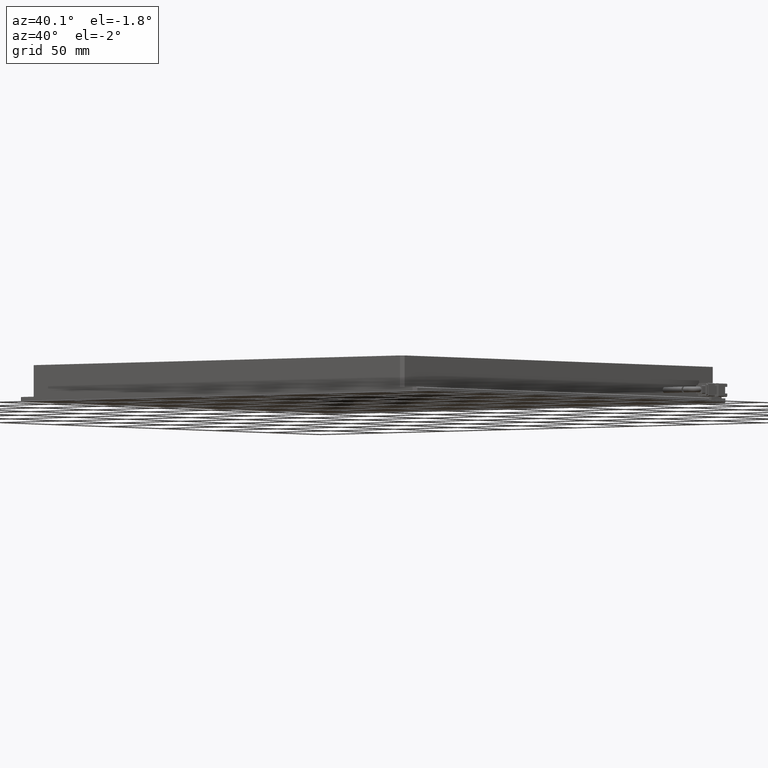
[diagram: clean part render]
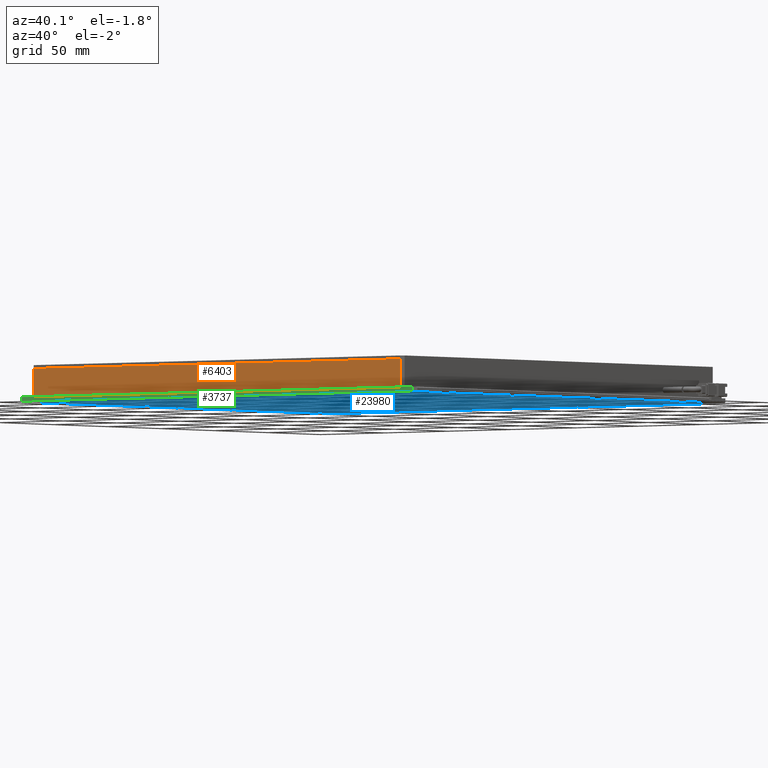
[diagram: same view with three faces highlighted in distinct colors, each labeled with its STEP entity id]
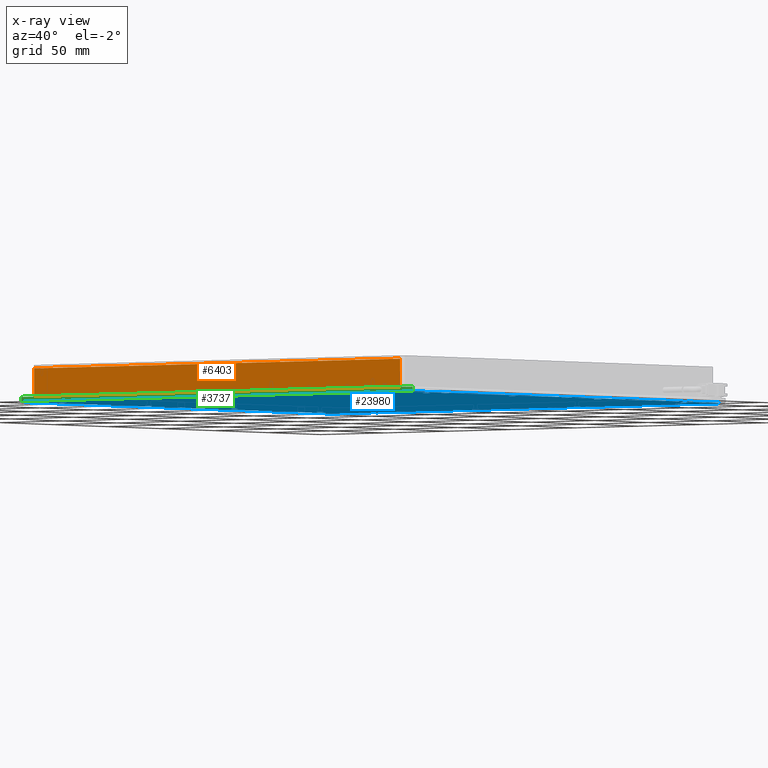
[diagram: x-ray of the same camera — body ghosted, the three highlighted faces saturated]
A machine part, auxiliary view with three faces highlighted in distinct colors.
The next image is the same camera in x-ray (body ghosted, the three faces saturated) — at least one of them is partly hidden behind the body in this view.
Their STEP definitions:

[orange] entity #6403 — the highlighted planar face has unit normal (0, 1, -0).
#2193 = VECTOR ( 'NONE', #2307, 1000.000000000000000 ) ;
#2307 = DIRECTION ( 'NONE',  ( 1.000000000000000000, 0.0000000000000000000, -0.0000000000000000000 ) ) ;
#2627 = DIRECTION ( 'NONE',  ( -1.000000000000000000, 9.505334114941411000E-017, 0.0000000000000000000 ) ) ;
#3088 = DIRECTION ( 'NONE',  ( 9.505334114941411000E-017, 1.000000000000000000, -0.0000000000000000000 ) ) ;
#3488 = CARTESIAN_POINT ( 'NONE',  ( -113.0806771263418400, -132.7301954307733600, 8.499999999971805700 ) ) ;
#4339 = DIRECTION ( 'NONE',  ( -1.000000000000000000, 9.505334114941411000E-017, 0.0000000000000000000 ) ) ;
#5314 = LINE ( 'NONE', #25740, #10973 ) ;
#5516 = PLANE ( 'NONE',  #9503 ) ;
#6056 = ORIENTED_EDGE ( 'NONE', *, *, #18946, .T. ) ;
#6403 = ADVANCED_FACE ( 'NONE', ( #20739 ), #5516, .F. ) ;
#8598 = CARTESIAN_POINT ( 'NONE',  ( -111.0806771263418400, -132.7301954307733600, -8.500000000028194300 ) ) ;
#9488 = VECTOR ( 'NONE', #4339, 1000.000000000000000 ) ;
#9503 = AXIS2_PLACEMENT_3D ( 'NONE', #3488, #3088, #2627 ) ;
#10749 = DIRECTION ( 'NONE',  ( 0.0000000000000000000, 0.0000000000000000000, 1.000000000000000000 ) ) ;
#10973 = VECTOR ( 'NONE', #10749, 1000.000000000000000 ) ;
#12671 = EDGE_CURVE ( 'NONE', #14264, #14324, #25902, .T. ) ;
#14264 = VERTEX_POINT ( 'NONE', #16532 ) ;
#14324 = VERTEX_POINT ( 'NONE', #8598 ) ;
#15721 = CARTESIAN_POINT ( 'NONE',  ( -111.0806771263418400, -132.7301954307733600, 8.499999999971805700 ) ) ;
#16532 = CARTESIAN_POINT ( 'NONE',  ( 176.9193228736579600, -132.7301954307734200, -8.500000000028194300 ) ) ;
#17136 = LINE ( 'NONE', #15721, #22109 ) ;
#17187 = CARTESIAN_POINT ( 'NONE',  ( -113.0806771263418400, -132.7301954307733600, -8.500000000028194300 ) ) ;
#17313 = VERTEX_POINT ( 'NONE', #22462 ) ;
#17325 = CARTESIAN_POINT ( 'NONE',  ( -113.0806771263418400, -132.7301954307733600, 8.499999999971805700 ) ) ;
#17682 = VERTEX_POINT ( 'NONE', #24190 ) ;
#18946 = EDGE_CURVE ( 'NONE', #14264, #17682, #5314, .T. ) ;
#19063 = ORIENTED_EDGE ( 'NONE', *, *, #12671, .F. ) ;
#19524 = EDGE_CURVE ( 'NONE', #17313, #17682, #24322, .T. ) ;
#19708 = EDGE_LOOP ( 'NONE', ( #21804, #24916, #19063, #6056 ) ) ;
#20739 = FACE_OUTER_BOUND ( 'NONE', #19708, .T. ) ;
#21468 = EDGE_CURVE ( 'NONE', #17313, #14324, #17136, .T. ) ;
#21804 = ORIENTED_EDGE ( 'NONE', *, *, #19524, .F. ) ;
#22025 = DIRECTION ( 'NONE',  ( -0.0000000000000000000, 0.0000000000000000000, -1.000000000000000000 ) ) ;
#22109 = VECTOR ( 'NONE', #22025, 1000.000000000000000 ) ;
#22462 = CARTESIAN_POINT ( 'NONE',  ( -111.0806771263418400, -132.7301954307733600, 8.499999999971805700 ) ) ;
#24190 = CARTESIAN_POINT ( 'NONE',  ( 176.9193228736579000, -132.7301954307733900, 8.499999999971805700 ) ) ;
#24322 = LINE ( 'NONE', #17325, #2193 ) ;
#24916 = ORIENTED_EDGE ( 'NONE', *, *, #21468, .T. ) ;
#25740 = CARTESIAN_POINT ( 'NONE',  ( 176.9193228736580700, -132.7301954307733900, 8.499999999971805700 ) ) ;
#25902 = LINE ( 'NONE', #17187, #9488 ) ;

[blue] entity #23980 — the highlighted planar face has unit normal (0, 0, -1).
#104 = AXIS2_PLACEMENT_3D ( 'NONE', #3373, #18386, #5520 ) ;
#109 = AXIS2_PLACEMENT_3D ( 'NONE', #8415, #23417, #10579 ) ;
#126 = ORIENTED_EDGE ( 'NONE', *, *, #8638, .T. ) ;
#195 = CARTESIAN_POINT ( 'NONE',  ( -110.0806771263419100, 133.2698045692266100, -11.50000000014188300 ) ) ;
#214 = CARTESIAN_POINT ( 'NONE',  ( 181.6693228736581000, -98.73019543077344900, -11.50000000002819600 ) ) ;
#222 = DIRECTION ( 'NONE',  ( -0.0000000000000000000, -0.0000000000000000000, 1.000000000000000000 ) ) ;
#288 = CIRCLE ( 'NONE', #15339, 2.199999999810631200 ) ;
#311 = ORIENTED_EDGE ( 'NONE', *, *, #19484, .T. ) ;
#351 = DIRECTION ( 'NONE',  ( 1.000000000000000000, 0.0000000000000000000, 0.0000000000000000000 ) ) ;
#376 = CARTESIAN_POINT ( 'NONE',  ( 183.9193228736580700, 13.26980456922655100, -11.50000000002819600 ) ) ;
#439 = CARTESIAN_POINT ( 'NONE',  ( -110.0806771263419100, -26.73019543077340300, -11.50000000014188300 ) ) ;
#509 = CARTESIAN_POINT ( 'NONE',  ( -115.8306771263419100, 13.26980456922663400, -11.50000000002819600 ) ) ;
#516 = ORIENTED_EDGE ( 'NONE', *, *, #15140, .T. ) ;
#621 = DIRECTION ( 'NONE',  ( -1.000000000000000000, 0.0000000000000000000, -0.0000000000000000000 ) ) ;
#623 = EDGE_CURVE ( 'NONE', #18581, #18964, #20128, .T. ) ;
#652 = ORIENTED_EDGE ( 'NONE', *, *, #19132, .T. ) ;
#690 = CIRCLE ( 'NONE', #18587, 2.200000000005697400 ) ;
#748 = PLANE ( 'NONE',  #5030 ) ;
#786 = VERTEX_POINT ( 'NONE', #15441 ) ;
#824 = CARTESIAN_POINT ( 'NONE',  ( -110.0806771263419100, 133.2698045692266100, -11.50000000014188300 ) ) ;
#842 = DIRECTION ( 'NONE',  ( 0.0000000000000000000, 0.0000000000000000000, -1.000000000000000000 ) ) ;
#843 = CIRCLE ( 'NONE', #23921, 2.249999999999974200 ) ;
#902 = VERTEX_POINT ( 'NONE', #18473 ) ;
#965 = DIRECTION ( 'NONE',  ( -0.7071067811865130400, -0.7071067811865819900, 0.0000000000000000000 ) ) ;
#999 = EDGE_CURVE ( 'NONE', #23861, #22208, #20082, .T. ) ;
#1042 = CARTESIAN_POINT ( 'NONE',  ( -122.5806771263419400, 157.0626977880401100, -11.50000000002820000 ) ) ;
#1045 = DIRECTION ( 'NONE',  ( -0.0000000000000000000, -0.0000000000000000000, 1.000000000000000000 ) ) ;
#1109 = VERTEX_POINT ( 'NONE', #24661 ) ;
#1119 = EDGE_CURVE ( 'NONE', #18701, #17661, #25244, .T. ) ;
#1125 = DIRECTION ( 'NONE',  ( -0.0000000000000000000, -0.0000000000000000000, 1.000000000000000000 ) ) ;
#1228 = CIRCLE ( 'NONE', #17219, 2.249999999999988000 ) ;
#1231 = VERTEX_POINT ( 'NONE', #25310 ) ;
#1236 = ORIENTED_EDGE ( 'NONE', *, *, #22980, .T. ) ;
#1239 = CARTESIAN_POINT ( 'NONE',  ( -120.3306771263419000, 125.2698045692265900, -11.50000000002819600 ) ) ;
#1270 = CARTESIAN_POINT ( 'NONE',  ( -110.0806771263419100, -26.73019543077340300, -11.50000000014188300 ) ) ;
#1297 = DIRECTION ( 'NONE',  ( 1.000000000000000000, 0.0000000000000000000, 0.0000000000000000000 ) ) ;
#1325 = AXIS2_PLACEMENT_3D ( 'NONE', #18404, #5534, #20531 ) ;
#1442 = CARTESIAN_POINT ( 'NONE',  ( 178.1193228734687200, -26.73019543077340300, -11.49999999997135300 ) ) ;
#1458 = DIRECTION ( 'NONE',  ( -1.000000000000000000, 0.0000000000000000000, 0.0000000000000000000 ) ) ;
#1489 = DIRECTION ( 'NONE',  ( -0.0000000000000000000, -0.0000000000000000000, 1.000000000000000000 ) ) ;
#1511 = CARTESIAN_POINT ( 'NONE',  ( -122.5806771263419300, 159.2698045692266400, -11.50000000002819600 ) ) ;
#1517 = CARTESIAN_POINT ( 'NONE',  ( 175.9193228736580700, -26.73019543077340300, -11.49999999997135300 ) ) ;
#1598 = CIRCLE ( 'NONE', #7777, 2.199999999917046100 ) ;
#1602 = ORIENTED_EDGE ( 'NONE', *, *, #1119, .T. ) ;
#1824 = CARTESIAN_POINT ( 'NONE',  ( 181.6693228736581000, 125.2698045692265400, -11.50000000002819600 ) ) ;
#1958 = ORIENTED_EDGE ( 'NONE', *, *, #623, .T. ) ;
#1964 = ORIENTED_EDGE ( 'NONE', *, *, #13169, .T. ) ;
#1965 = AXIS2_PLACEMENT_3D ( 'NONE', #4553, #3075, #3050 ) ;
#1988 = CARTESIAN_POINT ( 'NONE',  ( -110.0806771263419100, 53.26980456922658600, -11.50000000014188300 ) ) ;
#2167 = ORIENTED_EDGE ( 'NONE', *, *, #22068, .T. ) ;
#2182 = EDGE_CURVE ( 'NONE', #1109, #10470, #14063, .T. ) ;
#2321 = DIRECTION ( 'NONE',  ( -1.000000000000000000, 0.0000000000000000000, 0.0000000000000000000 ) ) ;
#2338 = FACE_BOUND ( 'NONE', #12553, .T. ) ;
#2458 = AXIS2_PLACEMENT_3D ( 'NONE', #13839, #1045, #16034 ) ;
#2460 = VERTEX_POINT ( 'NONE', #7635 ) ;
#2499 = DIRECTION ( 'NONE',  ( 1.000000000000000000, 0.0000000000000000000, 0.0000000000000000000 ) ) ;
#2570 = DIRECTION ( 'NONE',  ( -1.000000000000000000, 0.0000000000000000000, 0.0000000000000000000 ) ) ;
#2576 = ORIENTED_EDGE ( 'NONE', *, *, #21620, .T. ) ;
#2587 = AXIS2_PLACEMENT_3D ( 'NONE', #13936, #1125, #16121 ) ;
#2677 = CIRCLE ( 'NONE', #6305, 2.199999999917046100 ) ;
#2703 = VERTEX_POINT ( 'NONE', #17598 ) ;
#2766 = VERTEX_POINT ( 'NONE', #9440 ) ;
#2813 = CARTESIAN_POINT ( 'NONE',  ( -84.88067712644075900, 156.2698045692266400, -11.50000000002819600 ) ) ;
#2818 = DIRECTION ( 'NONE',  ( -0.0000000000000000000, -0.0000000000000000000, 1.000000000000000000 ) ) ;
#2824 = CARTESIAN_POINT ( 'NONE',  ( -118.0806771263419100, 125.2698045692265900, -11.50000000002819600 ) ) ;
#2826 = VERTEX_POINT ( 'NONE', #4204 ) ;
#2902 = CARTESIAN_POINT ( 'NONE',  ( -7.080677126341916100, 156.2698045692266400, -11.49999999991450900 ) ) ;
#2950 = DIRECTION ( 'NONE',  ( -1.000000000000000000, 0.0000000000000000000, 0.0000000000000000000 ) ) ;
#3001 = AXIS2_PLACEMENT_3D ( 'NONE', #1988, #17014, #4150 ) ;
#3027 = DIRECTION ( 'NONE',  ( -0.0000000000000000000, -0.0000000000000000000, 1.000000000000000000 ) ) ;
#3028 = FACE_BOUND ( 'NONE', #15263, .T. ) ;
#3034 = CARTESIAN_POINT ( 'NONE',  ( 186.1693228736580700, 13.26980456922655100, -11.50000000002819600 ) ) ;
#3050 = DIRECTION ( 'NONE',  ( -1.000000000000000000, 0.0000000000000000000, 0.0000000000000000000 ) ) ;
#3075 = DIRECTION ( 'NONE',  ( -0.0000000000000000000, -0.0000000000000000000, 1.000000000000000000 ) ) ;
#3103 = DIRECTION ( 'NONE',  ( 0.0000000000000000000, 1.000000000000000000, 0.0000000000000000000 ) ) ;
#3121 = CARTESIAN_POINT ( 'NONE',  ( 152.9193228736580500, 156.2698045692266400, -11.50000000002819600 ) ) ;
#3166 = CIRCLE ( 'NONE', #27599, 2.249999999999974200 ) ;
#3182 = AXIS2_PLACEMENT_3D ( 'NONE', #26915, #14116, #1297 ) ;
#3360 = DIRECTION ( 'NONE',  ( -0.0000000000000000000, -1.000000000000000000, -0.0000000000000000000 ) ) ;
#3373 = CARTESIAN_POINT ( 'NONE',  ( -87.08067712634191100, 156.2698045692266400, -11.50000000002819600 ) ) ;
#3384 = DIRECTION ( 'NONE',  ( -1.000000000000000000, 0.0000000000000000000, 0.0000000000000000000 ) ) ;
#3436 = ORIENTED_EDGE ( 'NONE', *, *, #10246, .T. ) ;
#3456 = ORIENTED_EDGE ( 'NONE', *, *, #14642, .T. ) ;
#3463 = DIRECTION ( 'NONE',  ( -0.0000000000000000000, -0.0000000000000000000, 1.000000000000000000 ) ) ;
#3464 = AXIS2_PLACEMENT_3D ( 'NONE', #1270, #16261, #3384 ) ;
#3492 = DIRECTION ( 'NONE',  ( -0.0000000000000000000, -0.0000000000000000000, 1.000000000000000000 ) ) ;
#3578 = ORIENTED_EDGE ( 'NONE', *, *, #26764, .T. ) ;
#3621 = CIRCLE ( 'NONE', #104, 2.199999999901142400 ) ;
#3635 = ORIENTED_EDGE ( 'NONE', *, *, #23437, .T. ) ;
#3653 = ORIENTED_EDGE ( 'NONE', *, *, #4949, .T. ) ;
#3701 = FACE_BOUND ( 'NONE', #18339, .T. ) ;
#3760 = CARTESIAN_POINT ( 'NONE',  ( 173.7193228738474600, 53.26980456922658600, -11.49999999997135300 ) ) ;
#3935 = ORIENTED_EDGE ( 'NONE', *, *, #23698, .T. ) ;
#3959 = ORIENTED_EDGE ( 'NONE', *, *, #5584, .T. ) ;
#3997 = DIRECTION ( 'NONE',  ( -0.0000000000000000000, -0.0000000000000000000, 1.000000000000000000 ) ) ;
#4150 = DIRECTION ( 'NONE',  ( -1.000000000000000000, 0.0000000000000000000, 0.0000000000000000000 ) ) ;
#4161 = ORIENTED_EDGE ( 'NONE', *, *, #26240, .T. ) ;
#4204 = CARTESIAN_POINT ( 'NONE',  ( -112.2806771262676100, 133.2698045692266100, -11.50000000014188300 ) ) ;
#4370 = FACE_BOUND ( 'NONE', #19651, .T. ) ;
#4412 = DIRECTION ( 'NONE',  ( -0.0000000000000000000, -0.0000000000000000000, 1.000000000000000000 ) ) ;
#4502 = DIRECTION ( 'NONE',  ( -0.0000000000000000000, -0.0000000000000000000, 1.000000000000000000 ) ) ;
#4551 = VERTEX_POINT ( 'NONE', #8855 ) ;
#4553 = CARTESIAN_POINT ( 'NONE',  ( -110.0806771263419100, -106.7301954307733900, -11.50000000014188300 ) ) ;
#4649 = ORIENTED_EDGE ( 'NONE', *, *, #14593, .T. ) ;
#4716 = CARTESIAN_POINT ( 'NONE',  ( 188.4193228736581000, 157.0626977880402800, -11.50000000002819100 ) ) ;
#4870 = VERTEX_POINT ( 'NONE', #5995 ) ;
#4882 = CIRCLE ( 'NONE', #21459, 2.199999999810631200 ) ;
#4949 = EDGE_CURVE ( 'NONE', #902, #13515, #13324, .T. ) ;
#4978 = ORIENTED_EDGE ( 'NONE', *, *, #27356, .T. ) ;
#4984 = LINE ( 'NONE', #7125, #15734 ) ;
#4992 = DIRECTION ( 'NONE',  ( 1.000000000000000000, 0.0000000000000000000, 0.0000000000000000000 ) ) ;
#5030 = AXIS2_PLACEMENT_3D ( 'NONE', #13648, #842, #15821 ) ;
#5046 = FACE_BOUND ( 'NONE', #20058, .T. ) ;
#5060 = DIRECTION ( 'NONE',  ( -1.000000000000000000, 0.0000000000000000000, 0.0000000000000000000 ) ) ;
#5065 = DIRECTION ( 'NONE',  ( -0.0000000000000000000, -0.0000000000000000000, 1.000000000000000000 ) ) ;
#5189 = CIRCLE ( 'NONE', #3182, 2.249999999999974200 ) ;
#5202 = AXIS2_PLACEMENT_3D ( 'NONE', #22645, #22547, #22609 ) ;
#5242 = CIRCLE ( 'NONE', #22264, 2.249999999999988000 ) ;
#5298 = DIRECTION ( 'NONE',  ( -1.000000000000000000, 0.0000000000000000000, 0.0000000000000000000 ) ) ;
#5301 = CARTESIAN_POINT ( 'NONE',  ( 173.7193228738474600, -26.73019543077340300, -11.49999999997135300 ) ) ;
#5327 = DIRECTION ( 'NONE',  ( 1.000000000000000000, -0.0000000000000000000, 0.0000000000000000000 ) ) ;
#5346 = CARTESIAN_POINT ( 'NONE',  ( 175.9193228736580700, 53.26980456922658600, -11.49999999997135300 ) ) ;
#5486 = ORIENTED_EDGE ( 'NONE', *, *, #17856, .T. ) ;
#5520 = DIRECTION ( 'NONE',  ( -1.000000000000000000, 0.0000000000000000000, 0.0000000000000000000 ) ) ;
#5534 = DIRECTION ( 'NONE',  ( -0.0000000000000000000, -0.0000000000000000000, 1.000000000000000000 ) ) ;
#5539 = ORIENTED_EDGE ( 'NONE', *, *, #26575, .T. ) ;
#5571 = CARTESIAN_POINT ( 'NONE',  ( -7.080677126341916100, -129.7301954307733600, -11.49999999991450900 ) ) ;
#5584 = EDGE_CURVE ( 'NONE', #21562, #20268, #10356, .T. ) ;
#5667 = CARTESIAN_POINT ( 'NONE',  ( -89.28067712624304900, 156.2698045692266400, -11.50000000002819600 ) ) ;
#5715 = FACE_BOUND ( 'NONE', #22619, .T. ) ;
#5747 = VERTEX_POINT ( 'NONE', #13669 ) ;
#5942 = ORIENTED_EDGE ( 'NONE', *, *, #999, .T. ) ;
#5965 = LINE ( 'NONE', #22279, #27434 ) ;
#5995 = CARTESIAN_POINT ( 'NONE',  ( 155.1193228736637500, -129.7301954307733600, -11.50000000002819600 ) ) ;
#6154 = EDGE_CURVE ( 'NONE', #12321, #7148, #11979, .T. ) ;
#6176 = CARTESIAN_POINT ( 'NONE',  ( -87.08067712634191100, 156.2698045692266400, -11.50000000002819600 ) ) ;
#6240 = VECTOR ( 'NONE', #25619, 1000.000000000000100 ) ;
#6305 = AXIS2_PLACEMENT_3D ( 'NONE', #5571, #20567, #7736 ) ;
#6430 = ORIENTED_EDGE ( 'NONE', *, *, #7002, .T. ) ;
#6746 = AXIS2_PLACEMENT_3D ( 'NONE', #3121, #18146, #5298 ) ;
#6752 = DIRECTION ( 'NONE',  ( 1.000000000000000000, 0.0000000000000000000, 0.0000000000000000000 ) ) ;
#6847 = DIRECTION ( 'NONE',  ( -0.0000000000000000000, -0.0000000000000000000, 1.000000000000000000 ) ) ;
#6920 = VERTEX_POINT ( 'NONE', #10727 ) ;
#6962 = VECTOR ( 'NONE', #3103, 1000.000000000000000 ) ;
#7002 = EDGE_CURVE ( 'NONE', #17615, #20853, #5242, .T. ) ;
#7014 = VECTOR ( 'NONE', #621, 1000.000000000000000 ) ;
#7125 = CARTESIAN_POINT ( 'NONE',  ( -122.5806771263419400, 157.0626977880401100, -11.50000000002819600 ) ) ;
#7148 = VERTEX_POINT ( 'NONE', #1442 ) ;
#7247 = AXIS2_PLACEMENT_3D ( 'NONE', #14330, #1489, #16511 ) ;
#7493 = DIRECTION ( 'NONE',  ( -1.000000000000000000, 0.0000000000000000000, 0.0000000000000000000 ) ) ;
#7599 = VERTEX_POINT ( 'NONE', #3760 ) ;
#7635 = CARTESIAN_POINT ( 'NONE',  ( 173.7193228738474600, -106.7301954307733900, -11.49999999997135300 ) ) ;
#7732 = CIRCLE ( 'NONE', #2458, 2.199999999989821200 ) ;
#7736 = DIRECTION ( 'NONE',  ( -1.000000000000000000, 0.0000000000000000000, 0.0000000000000000000 ) ) ;
#7760 = EDGE_CURVE ( 'NONE', #23531, #24214, #16894, .T. ) ;
#7777 = AXIS2_PLACEMENT_3D ( 'NONE', #2902, #17920, #5060 ) ;
#7847 = DIRECTION ( 'NONE',  ( -0.0000000000000000000, -0.0000000000000000000, 1.000000000000000000 ) ) ;
#8054 = FACE_BOUND ( 'NONE', #13248, .T. ) ;
#8082 = CIRCLE ( 'NONE', #20736, 2.249999999999988000 ) ;
#8114 = CARTESIAN_POINT ( 'NONE',  ( 175.9193228736580700, 53.26980456922658600, -11.49999999997135300 ) ) ;
#8309 = DIRECTION ( 'NONE',  ( -1.000000000000000000, 0.0000000000000000000, 0.0000000000000000000 ) ) ;
#8359 = AXIS2_PLACEMENT_3D ( 'NONE', #9575, #24577, #11750 ) ;
#8415 = CARTESIAN_POINT ( 'NONE',  ( -118.0806771263419100, 125.2698045692265900, -11.50000000002819600 ) ) ;
#8470 = CARTESIAN_POINT ( 'NONE',  ( 186.7122160924718600, 158.7698045692266400, -11.50000000002819600 ) ) ;
#8638 = EDGE_CURVE ( 'NONE', #20853, #17615, #8082, .T. ) ;
#8688 = CARTESIAN_POINT ( 'NONE',  ( 155.1193228736637500, 156.2698045692266400, -11.50000000002819600 ) ) ;
#8696 = FACE_BOUND ( 'NONE', #21034, .T. ) ;
#8827 = CIRCLE ( 'NONE', #26127, 2.199999999925692100 ) ;
#8855 = CARTESIAN_POINT ( 'NONE',  ( 75.11932287364791700, -129.7301954307733600, -11.50000000002819600 ) ) ;
#9057 = VERTEX_POINT ( 'NONE', #18502 ) ;
#9240 = VERTEX_POINT ( 'NONE', #25565 ) ;
#9298 = DIRECTION ( 'NONE',  ( -0.0000000000000000000, -0.0000000000000000000, 1.000000000000000000 ) ) ;
#9315 = AXIS2_PLACEMENT_3D ( 'NONE', #2824, #17840, #4992 ) ;
#9338 = CARTESIAN_POINT ( 'NONE',  ( 188.4193228736581000, -130.5230886495869000, -11.50000000002819600 ) ) ;
#9374 = FACE_BOUND ( 'NONE', #16338, .T. ) ;
#9440 = CARTESIAN_POINT ( 'NONE',  ( 181.6693228736581000, 13.26980456922655100, -11.50000000002819600 ) ) ;
#9548 = CARTESIAN_POINT ( 'NONE',  ( 175.9193228736580700, -106.7301954307733900, -11.49999999997135300 ) ) ;
#9575 = CARTESIAN_POINT ( 'NONE',  ( -110.0806771263419100, -106.7301954307733900, -11.50000000014188300 ) ) ;
#9600 = CARTESIAN_POINT ( 'NONE',  ( -123.0806771263419100, 158.7698045692266400, -11.50000000002819600 ) ) ;
#9654 = CARTESIAN_POINT ( 'NONE',  ( 152.9193228736580500, 156.2698045692266400, -11.50000000002819600 ) ) ;
#9698 = CARTESIAN_POINT ( 'NONE',  ( -120.8735703451553900, -132.2301954307733900, -11.50000000002818900 ) ) ;
#9782 = DIRECTION ( 'NONE',  ( -0.0000000000000000000, -0.0000000000000000000, 1.000000000000000000 ) ) ;
#9786 = CARTESIAN_POINT ( 'NONE',  ( 72.91932287365810300, 156.2698045692266400, -11.50000000002819600 ) ) ;
#9875 = DIRECTION ( 'NONE',  ( -1.000000000000000000, 0.0000000000000000000, 0.0000000000000000000 ) ) ;
#10054 = FACE_BOUND ( 'NONE', #18680, .T. ) ;
#10246 = EDGE_CURVE ( 'NONE', #15889, #17369, #21054, .T. ) ;
#10256 = DIRECTION ( 'NONE',  ( -1.000000000000000000, 0.0000000000000000000, 0.0000000000000000000 ) ) ;
#10347 = DIRECTION ( 'NONE',  ( -0.0000000000000000000, -0.0000000000000000000, 1.000000000000000000 ) ) ;
#10356 = CIRCLE ( 'NONE', #13631, 2.199999999917046100 ) ;
#10470 = VERTEX_POINT ( 'NONE', #25184 ) ;
#10579 = DIRECTION ( 'NONE',  ( 1.000000000000000000, 0.0000000000000000000, 0.0000000000000000000 ) ) ;
#10655 = CARTESIAN_POINT ( 'NONE',  ( -4.880677126424870900, 156.2698045692266400, -11.49999999991450900 ) ) ;
#10727 = CARTESIAN_POINT ( 'NONE',  ( 75.11932287364791700, 156.2698045692266400, -11.50000000002819600 ) ) ;
#10877 = VERTEX_POINT ( 'NONE', #9698 ) ;
#11034 = CARTESIAN_POINT ( 'NONE',  ( 175.9193228736580700, -106.7301954307733900, -11.49999999997135300 ) ) ;
#11359 = EDGE_CURVE ( 'NONE', #9057, #2703, #22591, .T. ) ;
#11472 = ORIENTED_EDGE ( 'NONE', *, *, #27718, .T. ) ;
#11606 = VERTEX_POINT ( 'NONE', #18762 ) ;
#11687 = ORIENTED_EDGE ( 'NONE', *, *, #12112, .T. ) ;
#11699 = CARTESIAN_POINT ( 'NONE',  ( -107.8806771264162200, -26.73019543077340300, -11.50000000014188300 ) ) ;
#11723 = DIRECTION ( 'NONE',  ( -1.000000000000000000, 0.0000000000000000000, 0.0000000000000000000 ) ) ;
#11750 = DIRECTION ( 'NONE',  ( -1.000000000000000000, 0.0000000000000000000, 0.0000000000000000000 ) ) ;
#11898 = EDGE_CURVE ( 'NONE', #21513, #2766, #21862, .T. ) ;
#11908 = CIRCLE ( 'NONE', #20093, 2.199999999925692100 ) ;
#11954 = DIRECTION ( 'NONE',  ( -1.000000000000000000, 0.0000000000000000000, 0.0000000000000000000 ) ) ;
#11979 = CIRCLE ( 'NONE', #26374, 2.199999999810631200 ) ;
#11982 = CARTESIAN_POINT ( 'NONE',  ( -118.0806771263419100, -98.73019543077346300, -11.50000000002819600 ) ) ;
#12009 = ORIENTED_EDGE ( 'NONE', *, *, #15636, .T. ) ;
#12112 = EDGE_CURVE ( 'NONE', #14605, #9240, #16861, .T. ) ;
#12321 = VERTEX_POINT ( 'NONE', #5301 ) ;
#12416 = LINE ( 'NONE', #22234, #18152 ) ;
#12496 = VERTEX_POINT ( 'NONE', #22867 ) ;
#12553 = EDGE_LOOP ( 'NONE', ( #20238, #27409 ) ) ;
#12932 = AXIS2_PLACEMENT_3D ( 'NONE', #6176, #21160, #8309 ) ;
#13026 = CARTESIAN_POINT ( 'NONE',  ( 72.91932287365810300, -129.7301954307733600, -11.50000000002819600 ) ) ;
#13140 = DIRECTION ( 'NONE',  ( -0.0000000000000000000, -0.0000000000000000000, 1.000000000000000000 ) ) ;
#13169 = EDGE_CURVE ( 'NONE', #13614, #14563, #16184, .T. ) ;
#13199 = DIRECTION ( 'NONE',  ( -1.000000000000000000, 0.0000000000000000000, 0.0000000000000000000 ) ) ;
#13248 = EDGE_LOOP ( 'NONE', ( #126, #6430 ) ) ;
#13324 = LINE ( 'NONE', #1511, #6962 ) ;
#13365 = ORIENTED_EDGE ( 'NONE', *, *, #17760, .T. ) ;
#13447 = CIRCLE ( 'NONE', #15039, 2.199999999925692100 ) ;
#13450 = CARTESIAN_POINT ( 'NONE',  ( -9.280677126258963100, 156.2698045692266400, -11.49999999991450900 ) ) ;
#13515 = VERTEX_POINT ( 'NONE', #1042 ) ;
#13585 = ORIENTED_EDGE ( 'NONE', *, *, #14186, .T. ) ;
#13614 = VERTEX_POINT ( 'NONE', #5667 ) ;
#13631 = AXIS2_PLACEMENT_3D ( 'NONE', #17084, #17025, #16989 ) ;
#13648 = CARTESIAN_POINT ( 'NONE',  ( -123.0806771263419100, 159.2698045692266400, -11.50000000002819600 ) ) ;
#13669 = CARTESIAN_POINT ( 'NONE',  ( -107.8806771264162200, 133.2698045692266100, -11.50000000014188300 ) ) ;
#13692 = ORIENTED_EDGE ( 'NONE', *, *, #19340, .T. ) ;
#13754 = FACE_BOUND ( 'NONE', #19926, .T. ) ;
#13839 = CARTESIAN_POINT ( 'NONE',  ( 72.91932287365810300, 156.2698045692266400, -11.50000000002819600 ) ) ;
#13936 = CARTESIAN_POINT ( 'NONE',  ( 175.9193228736580700, -26.73019543077340300, -11.49999999997135300 ) ) ;
#14048 = ORIENTED_EDGE ( 'NONE', *, *, #24493, .T. ) ;
#14063 = CIRCLE ( 'NONE', #1965, 2.199999999925692100 ) ;
#14116 = DIRECTION ( 'NONE',  ( -0.0000000000000000000, -0.0000000000000000000, 1.000000000000000000 ) ) ;
#14186 = EDGE_CURVE ( 'NONE', #17851, #19246, #25441, .T. ) ;
#14308 = CIRCLE ( 'NONE', #6746, 2.200000000005697400 ) ;
#14330 = CARTESIAN_POINT ( 'NONE',  ( 175.9193228736580700, 133.2698045692266100, -11.49999999997135300 ) ) ;
#14363 = CARTESIAN_POINT ( 'NONE',  ( -4.880677126424870900, -129.7301954307733600, -11.49999999991450900 ) ) ;
#14373 = DIRECTION ( 'NONE',  ( -1.000000000000000000, 0.0000000000000000000, 0.0000000000000000000 ) ) ;
#14382 = ORIENTED_EDGE ( 'NONE', *, *, #14556, .T. ) ;
#14437 = FACE_BOUND ( 'NONE', #15682, .T. ) ;
#14556 = EDGE_CURVE ( 'NONE', #13515, #14605, #4984, .T. ) ;
#14563 = VERTEX_POINT ( 'NONE', #2813 ) ;
#14593 = EDGE_CURVE ( 'NONE', #17257, #12496, #5965, .T. ) ;
#14605 = VERTEX_POINT ( 'NONE', #18115 ) ;
#14642 = EDGE_CURVE ( 'NONE', #17650, #7599, #288, .T. ) ;
#14648 = CIRCLE ( 'NONE', #19724, 2.249999999999974200 ) ;
#14693 = LINE ( 'NONE', #18190, #19728 ) ;
#14962 = EDGE_LOOP ( 'NONE', ( #3436, #24568 ) ) ;
#15039 = AXIS2_PLACEMENT_3D ( 'NONE', #195, #15166, #2321 ) ;
#15104 = FACE_BOUND ( 'NONE', #18590, .T. ) ;
#15140 = EDGE_CURVE ( 'NONE', #6920, #11606, #15976, .T. ) ;
#15166 = DIRECTION ( 'NONE',  ( -0.0000000000000000000, -0.0000000000000000000, 1.000000000000000000 ) ) ;
#15197 = DIRECTION ( 'NONE',  ( -1.000000000000000000, 0.0000000000000000000, 0.0000000000000000000 ) ) ;
#15263 = EDGE_LOOP ( 'NONE', ( #24292, #15741 ) ) ;
#15322 = EDGE_CURVE ( 'NONE', #26889, #24257, #21592, .T. ) ;
#15335 = ORIENTED_EDGE ( 'NONE', *, *, #2182, .T. ) ;
#15339 = AXIS2_PLACEMENT_3D ( 'NONE', #5346, #20339, #7493 ) ;
#15352 = DIRECTION ( 'NONE',  ( -0.0000000000000000000, -0.0000000000000000000, 1.000000000000000000 ) ) ;
#15422 = DIRECTION ( 'NONE',  ( -0.0000000000000000000, -0.0000000000000000000, 1.000000000000000000 ) ) ;
#15441 = CARTESIAN_POINT ( 'NONE',  ( 178.1193228734687200, 133.2698045692266100, -11.49999999997135300 ) ) ;
#15504 = DIRECTION ( 'NONE',  ( -0.0000000000000000000, -0.0000000000000000000, 1.000000000000000000 ) ) ;
#15511 = VERTEX_POINT ( 'NONE', #4716 ) ;
#15589 = ORIENTED_EDGE ( 'NONE', *, *, #23002, .T. ) ;
#15622 = EDGE_LOOP ( 'NONE', ( #15589, #16943 ) ) ;
#15636 = EDGE_CURVE ( 'NONE', #18964, #18581, #14308, .T. ) ;
#15682 = EDGE_LOOP ( 'NONE', ( #15335, #15735 ) ) ;
#15687 = CARTESIAN_POINT ( 'NONE',  ( -110.0806771263419100, 53.26980456922658600, -11.50000000014188300 ) ) ;
#15735 = ORIENTED_EDGE ( 'NONE', *, *, #23067, .T. ) ;
#15734 = VECTOR ( 'NONE', #22079, 1000.000000000000000 ) ;
#15741 = ORIENTED_EDGE ( 'NONE', *, *, #23334, .T. ) ;
#15813 = DIRECTION ( 'NONE',  ( -0.0000000000000000000, -0.0000000000000000000, 1.000000000000000000 ) ) ;
#15821 = DIRECTION ( 'NONE',  ( -1.000000000000000000, 0.0000000000000000000, -0.0000000000000000000 ) ) ;
#15889 = VERTEX_POINT ( 'NONE', #21270 ) ;
#15901 = CARTESIAN_POINT ( 'NONE',  ( 183.9193228736580700, -98.73019543077344900, -11.50000000002819600 ) ) ;
#15905 = ORIENTED_EDGE ( 'NONE', *, *, #27776, .T. ) ;
#15920 = DIRECTION ( 'NONE',  ( -0.7071067811865510100, 0.7071067811865441300, 0.0000000000000000000 ) ) ;
#15976 = CIRCLE ( 'NONE', #17500, 2.199999999989821200 ) ;
#16034 = DIRECTION ( 'NONE',  ( -1.000000000000000000, 0.0000000000000000000, 0.0000000000000000000 ) ) ;
#16121 = DIRECTION ( 'NONE',  ( -1.000000000000000000, 0.0000000000000000000, 0.0000000000000000000 ) ) ;
#16178 = CARTESIAN_POINT ( 'NONE',  ( -9.280677126258963100, -129.7301954307733600, -11.49999999991450900 ) ) ;
#16184 = CIRCLE ( 'NONE', #12932, 2.199999999901142400 ) ;
#16219 = EDGE_CURVE ( 'NONE', #26591, #21855, #5189, .T. ) ;
#16261 = DIRECTION ( 'NONE',  ( -0.0000000000000000000, -0.0000000000000000000, 1.000000000000000000 ) ) ;
#16293 = EDGE_LOOP ( 'NONE', ( #16685, #13692 ) ) ;
#16320 = EDGE_LOOP ( 'NONE', ( #27640, #3456 ) ) ;
#16338 = EDGE_LOOP ( 'NONE', ( #25322, #24022 ) ) ;
#16343 = CARTESIAN_POINT ( 'NONE',  ( 72.91932287365810300, -129.7301954307733600, -11.50000000002819600 ) ) ;
#16370 = CARTESIAN_POINT ( 'NONE',  ( 152.9193228736580500, -129.7301954307733600, -11.50000000002819600 ) ) ;
#16485 = FACE_OUTER_BOUND ( 'NONE', #21266, .T. ) ;
#16511 = DIRECTION ( 'NONE',  ( -1.000000000000000000, 0.0000000000000000000, 0.0000000000000000000 ) ) ;
#16619 = CARTESIAN_POINT ( 'NONE',  ( 150.7193228736523700, 156.2698045692266400, -11.50000000002819600 ) ) ;
#16685 = ORIENTED_EDGE ( 'NONE', *, *, #18438, .T. ) ;
#16759 = CARTESIAN_POINT ( 'NONE',  ( -120.3306771263419000, 13.26980456922663400, -11.50000000002819600 ) ) ;
#16775 = AXIS2_PLACEMENT_3D ( 'NONE', #17271, #4412, #19430 ) ;
#16851 = CARTESIAN_POINT ( 'NONE',  ( 183.9193228736580700, 125.2698045692265400, -11.50000000002819600 ) ) ;
#16859 = CIRCLE ( 'NONE', #21812, 2.200000000005697400 ) ;
#16861 = LINE ( 'NONE', #9600, #21837 ) ;
#16894 = CIRCLE ( 'NONE', #16775, 2.249999999999988000 ) ;
#16943 = ORIENTED_EDGE ( 'NONE', *, *, #27126, .T. ) ;
#16989 = DIRECTION ( 'NONE',  ( -1.000000000000000000, 0.0000000000000000000, 0.0000000000000000000 ) ) ;
#17014 = DIRECTION ( 'NONE',  ( -0.0000000000000000000, -0.0000000000000000000, 1.000000000000000000 ) ) ;
#17025 = DIRECTION ( 'NONE',  ( -0.0000000000000000000, -0.0000000000000000000, 1.000000000000000000 ) ) ;
#17084 = CARTESIAN_POINT ( 'NONE',  ( -7.080677126341916100, -129.7301954307733600, -11.49999999991450900 ) ) ;
#17219 = AXIS2_PLACEMENT_3D ( 'NONE', #25967, #13140, #351 ) ;
#17257 = VERTEX_POINT ( 'NONE', #9338 ) ;
#17271 = CARTESIAN_POINT ( 'NONE',  ( -118.0806771263419100, 13.26980456922663400, -11.50000000002819600 ) ) ;
#17368 = CARTESIAN_POINT ( 'NONE',  ( -87.08067712634191100, -129.7301954307733600, -11.50000000002819600 ) ) ;
#17369 = VERTEX_POINT ( 'NONE', #1239 ) ;
#17373 = CARTESIAN_POINT ( 'NONE',  ( 186.1693228736580700, -98.73019543077344900, -11.50000000002819600 ) ) ;
#17452 = CARTESIAN_POINT ( 'NONE',  ( -7.080677126341916100, 156.2698045692266400, -11.49999999991450900 ) ) ;
#17500 = AXIS2_PLACEMENT_3D ( 'NONE', #9786, #24783, #11954 ) ;
#17598 = CARTESIAN_POINT ( 'NONE',  ( -107.8806771264162200, 53.26980456922658600, -11.50000000014188300 ) ) ;
#17615 = VERTEX_POINT ( 'NONE', #25980 ) ;
#17636 = AXIS2_PLACEMENT_3D ( 'NONE', #9548, #24555, #11723 ) ;
#17650 = VERTEX_POINT ( 'NONE', #24089 ) ;
#17661 = VERTEX_POINT ( 'NONE', #13450 ) ;
#17745 = CIRCLE ( 'NONE', #17636, 2.199999999810631200 ) ;
#17760 = EDGE_CURVE ( 'NONE', #10877, #902, #12416, .T. ) ;
#17834 = DIRECTION ( 'NONE',  ( -1.000000000000000000, 0.0000000000000000000, 0.0000000000000000000 ) ) ;
#17840 = DIRECTION ( 'NONE',  ( -0.0000000000000000000, -0.0000000000000000000, 1.000000000000000000 ) ) ;
#17851 = VERTEX_POINT ( 'NONE', #20487 ) ;
#17856 = EDGE_CURVE ( 'NONE', #20268, #21562, #2677, .T. ) ;
#17920 = DIRECTION ( 'NONE',  ( -0.0000000000000000000, -0.0000000000000000000, 1.000000000000000000 ) ) ;
#17926 = CARTESIAN_POINT ( 'NONE',  ( 152.9193228736580500, -129.7301954307733600, -11.50000000002819600 ) ) ;
#18050 = DIRECTION ( 'NONE',  ( 1.000000000000000000, 0.0000000000000000000, 0.0000000000000000000 ) ) ;
#18115 = CARTESIAN_POINT ( 'NONE',  ( -120.8735703451554300, 158.7698045692266400, -11.50000000002819600 ) ) ;
#18146 = DIRECTION ( 'NONE',  ( -0.0000000000000000000, -0.0000000000000000000, 1.000000000000000000 ) ) ;
#18152 = VECTOR ( 'NONE', #15920, 999.9999999999998900 ) ;
#18190 = CARTESIAN_POINT ( 'NONE',  ( 188.4193228736581000, 159.2698045692266400, -11.50000000002819600 ) ) ;
#18196 = ORIENTED_EDGE ( 'NONE', *, *, #16219, .T. ) ;
#18272 = EDGE_LOOP ( 'NONE', ( #3635, #3935 ) ) ;
#18320 = EDGE_LOOP ( 'NONE', ( #3959, #5486 ) ) ;
#18339 = EDGE_LOOP ( 'NONE', ( #19679, #25415 ) ) ;
#18362 = CIRCLE ( 'NONE', #7247, 2.199999999810631200 ) ;
#18374 = EDGE_CURVE ( 'NONE', #2460, #19276, #17745, .T. ) ;
#18386 = DIRECTION ( 'NONE',  ( -0.0000000000000000000, -0.0000000000000000000, 1.000000000000000000 ) ) ;
#18404 = CARTESIAN_POINT ( 'NONE',  ( 175.9193228736580700, 133.2698045692266100, -11.49999999997135300 ) ) ;
#18438 = EDGE_CURVE ( 'NONE', #23201, #786, #19405, .T. ) ;
#18473 = CARTESIAN_POINT ( 'NONE',  ( -122.5806771263419100, -130.5230886495868700, -11.50000000002818200 ) ) ;
#18482 = DIRECTION ( 'NONE',  ( -1.000000000000000000, 0.0000000000000000000, 0.0000000000000000000 ) ) ;
#18502 = CARTESIAN_POINT ( 'NONE',  ( -112.2806771262676100, 53.26980456922658600, -11.50000000014188300 ) ) ;
#18508 = DIRECTION ( 'NONE',  ( -1.000000000000000000, 0.0000000000000000000, 0.0000000000000000000 ) ) ;
#18581 = VERTEX_POINT ( 'NONE', #16619 ) ;
#18587 = AXIS2_PLACEMENT_3D ( 'NONE', #16370, #3492, #18508 ) ;
#18590 = EDGE_LOOP ( 'NONE', ( #5539, #5942 ) ) ;
#18613 = CARTESIAN_POINT ( 'NONE',  ( 173.7193228738474600, 133.2698045692266100, -11.49999999997135300 ) ) ;
#18680 = EDGE_LOOP ( 'NONE', ( #2576, #3578 ) ) ;
#18701 = VERTEX_POINT ( 'NONE', #10655 ) ;
#18762 = CARTESIAN_POINT ( 'NONE',  ( 70.71932287366827600, 156.2698045692266400, -11.50000000002819600 ) ) ;
#18817 = FACE_BOUND ( 'NONE', #20320, .T. ) ;
#18964 = VERTEX_POINT ( 'NONE', #8688 ) ;
#19011 = DIRECTION ( 'NONE',  ( 1.000000000000000000, 0.0000000000000000000, 0.0000000000000000000 ) ) ;
#19132 = EDGE_CURVE ( 'NONE', #17661, #18701, #1598, .T. ) ;
#19209 = AXIS2_PLACEMENT_3D ( 'NONE', #13026, #222, #15197 ) ;
#19230 = CIRCLE ( 'NONE', #20934, 2.199999999901142400 ) ;
#19246 = VERTEX_POINT ( 'NONE', #11699 ) ;
#19276 = VERTEX_POINT ( 'NONE', #24624 ) ;
#19340 = EDGE_CURVE ( 'NONE', #786, #23201, #18362, .T. ) ;
#19405 = CIRCLE ( 'NONE', #1325, 2.199999999810631200 ) ;
#19430 = DIRECTION ( 'NONE',  ( 1.000000000000000000, 0.0000000000000000000, 0.0000000000000000000 ) ) ;
#19449 = AXIS2_PLACEMENT_3D ( 'NONE', #15687, #2818, #17834 ) ;
#19468 = FACE_BOUND ( 'NONE', #14962, .T. ) ;
#19484 = EDGE_CURVE ( 'NONE', #9240, #15511, #23311, .T. ) ;
#19510 = DIRECTION ( 'NONE',  ( -1.000000000000000000, 0.0000000000000000000, 0.0000000000000000000 ) ) ;
#19537 = ORIENTED_EDGE ( 'NONE', *, *, #7760, .T. ) ;
#19625 = EDGE_LOOP ( 'NONE', ( #22218, #1236 ) ) ;
#19651 = EDGE_LOOP ( 'NONE', ( #1964, #2167 ) ) ;
#19679 = ORIENTED_EDGE ( 'NONE', *, *, #6154, .T. ) ;
#19724 = AXIS2_PLACEMENT_3D ( 'NONE', #20684, #7847, #22811 ) ;
#19728 = VECTOR ( 'NONE', #3360, 1000.000000000000000 ) ;
#19833 = VERTEX_POINT ( 'NONE', #20572 ) ;
#19900 = CIRCLE ( 'NONE', #3001, 2.199999999925692100 ) ;
#19926 = EDGE_LOOP ( 'NONE', ( #19537, #11472 ) ) ;
#20058 = EDGE_LOOP ( 'NONE', ( #652, #1602 ) ) ;
#20077 = DIRECTION ( 'NONE',  ( -1.000000000000000000, 0.0000000000000000000, 0.0000000000000000000 ) ) ;
#20082 = CIRCLE ( 'NONE', #5202, 2.199999999901142400 ) ;
#20093 = AXIS2_PLACEMENT_3D ( 'NONE', #439, #15422, #2570 ) ;
#20128 = CIRCLE ( 'NONE', #25966, 2.200000000005697400 ) ;
#20140 = FACE_BOUND ( 'NONE', #16293, .T. ) ;
#20238 = ORIENTED_EDGE ( 'NONE', *, *, #15322, .T. ) ;
#20268 = VERTEX_POINT ( 'NONE', #14363 ) ;
#20320 = EDGE_LOOP ( 'NONE', ( #4161, #18196 ) ) ;
#20339 = DIRECTION ( 'NONE',  ( -0.0000000000000000000, -0.0000000000000000000, 1.000000000000000000 ) ) ;
#20412 = EDGE_CURVE ( 'NONE', #17369, #15889, #26932, .T. ) ;
#20487 = CARTESIAN_POINT ( 'NONE',  ( -112.2806771262676100, -26.73019543077340300, -11.50000000014188300 ) ) ;
#20531 = DIRECTION ( 'NONE',  ( -1.000000000000000000, 0.0000000000000000000, 0.0000000000000000000 ) ) ;
#20541 = EDGE_CURVE ( 'NONE', #19276, #2460, #26573, .T. ) ;
#20567 = DIRECTION ( 'NONE',  ( -0.0000000000000000000, -0.0000000000000000000, 1.000000000000000000 ) ) ;
#20572 = CARTESIAN_POINT ( 'NONE',  ( 70.71932287366827600, -129.7301954307733600, -11.50000000002819600 ) ) ;
#20684 = CARTESIAN_POINT ( 'NONE',  ( 183.9193228736580700, 125.2698045692265400, -11.50000000002819600 ) ) ;
#20736 = AXIS2_PLACEMENT_3D ( 'NONE', #23168, #10347, #25337 ) ;
#20807 = FACE_BOUND ( 'NONE', #18320, .T. ) ;
#20853 = VERTEX_POINT ( 'NONE', #26959 ) ;
#20934 = AXIS2_PLACEMENT_3D ( 'NONE', #17368, #4502, #19510 ) ;
#20985 = AXIS2_PLACEMENT_3D ( 'NONE', #17452, #15504, #14373 ) ;
#21034 = EDGE_LOOP ( 'NONE', ( #13585, #15905 ) ) ;
#21054 = CIRCLE ( 'NONE', #9315, 2.249999999999988000 ) ;
#21160 = DIRECTION ( 'NONE',  ( -0.0000000000000000000, -0.0000000000000000000, 1.000000000000000000 ) ) ;
#21266 = EDGE_LOOP ( 'NONE', ( #3653, #14382, #11687, #311, #27461, #4649, #14048, #13365 ) ) ;
#21270 = CARTESIAN_POINT ( 'NONE',  ( -115.8306771263419100, 125.2698045692265900, -11.50000000002819600 ) ) ;
#21459 = AXIS2_PLACEMENT_3D ( 'NONE', #8114, #23091, #10256 ) ;
#21513 = VERTEX_POINT ( 'NONE', #3034 ) ;
#21562 = VERTEX_POINT ( 'NONE', #16178 ) ;
#21592 = CIRCLE ( 'NONE', #24115, 2.249999999999974200 ) ;
#21620 = EDGE_CURVE ( 'NONE', #1231, #4870, #690, .T. ) ;
#21812 = AXIS2_PLACEMENT_3D ( 'NONE', #17926, #5065, #20077 ) ;
#21837 = VECTOR ( 'NONE', #5327, 1000.000000000000000 ) ;
#21855 = VERTEX_POINT ( 'NONE', #17373 ) ;
#21862 = CIRCLE ( 'NONE', #25008, 2.249999999999974200 ) ;
#22068 = EDGE_CURVE ( 'NONE', #14563, #13614, #3621, .T. ) ;
#22073 = DIRECTION ( 'NONE',  ( -0.0000000000000000000, -0.0000000000000000000, 1.000000000000000000 ) ) ;
#22079 = DIRECTION ( 'NONE',  ( 0.7071067811865428000, 0.7071067811865522400, 0.0000000000000000000 ) ) ;
#22132 = CARTESIAN_POINT ( 'NONE',  ( 183.9193228736580700, 13.26980456922655100, -11.50000000002819600 ) ) ;
#22208 = VERTEX_POINT ( 'NONE', #25274 ) ;
#22218 = ORIENTED_EDGE ( 'NONE', *, *, #11898, .T. ) ;
#22234 = CARTESIAN_POINT ( 'NONE',  ( -120.8735703451553900, -132.2301954307733600, -11.50000000002819600 ) ) ;
#22264 = AXIS2_PLACEMENT_3D ( 'NONE', #11982, #6847, #6752 ) ;
#22279 = CARTESIAN_POINT ( 'NONE',  ( 188.4193228736581000, -130.5230886495869000, -11.50000000002819600 ) ) ;
#22422 = AXIS2_PLACEMENT_3D ( 'NONE', #16343, #3463, #18482 ) ;
#22467 = CARTESIAN_POINT ( 'NONE',  ( 186.1693228736580700, 125.2698045692265400, -11.50000000002819600 ) ) ;
#22499 = CIRCLE ( 'NONE', #22422, 2.199999999989821200 ) ;
#22547 = DIRECTION ( 'NONE',  ( -0.0000000000000000000, -0.0000000000000000000, 1.000000000000000000 ) ) ;
#22591 = CIRCLE ( 'NONE', #19449, 2.199999999925692100 ) ;
#22609 = DIRECTION ( 'NONE',  ( -1.000000000000000000, 0.0000000000000000000, 0.0000000000000000000 ) ) ;
#22619 = EDGE_LOOP ( 'NONE', ( #4978, #516 ) ) ;
#22645 = CARTESIAN_POINT ( 'NONE',  ( -87.08067712634191100, -129.7301954307733600, -11.50000000002819600 ) ) ;
#22687 = EDGE_CURVE ( 'NONE', #7599, #17650, #4882, .T. ) ;
#22811 = DIRECTION ( 'NONE',  ( 1.000000000000000000, 0.0000000000000000000, 0.0000000000000000000 ) ) ;
#22867 = CARTESIAN_POINT ( 'NONE',  ( 186.7122160924718100, -132.2301954307733600, -11.50000000002816200 ) ) ;
#22980 = EDGE_CURVE ( 'NONE', #2766, #21513, #3166, .T. ) ;
#23002 = EDGE_CURVE ( 'NONE', #2826, #5747, #8827, .T. ) ;
#23066 = AXIS2_PLACEMENT_3D ( 'NONE', #11034, #26020, #13199 ) ;
#23067 = EDGE_CURVE ( 'NONE', #10470, #1109, #27637, .T. ) ;
#23091 = DIRECTION ( 'NONE',  ( -0.0000000000000000000, -0.0000000000000000000, 1.000000000000000000 ) ) ;
#23168 = CARTESIAN_POINT ( 'NONE',  ( -118.0806771263419100, -98.73019543077346300, -11.50000000002819600 ) ) ;
#23201 = VERTEX_POINT ( 'NONE', #18613 ) ;
#23311 = LINE ( 'NONE', #8470, #6240 ) ;
#23334 = EDGE_CURVE ( 'NONE', #2703, #9057, #19900, .T. ) ;
#23417 = DIRECTION ( 'NONE',  ( -0.0000000000000000000, -0.0000000000000000000, 1.000000000000000000 ) ) ;
#23437 = EDGE_CURVE ( 'NONE', #19833, #4551, #24552, .T. ) ;
#23531 = VERTEX_POINT ( 'NONE', #509 ) ;
#23698 = EDGE_CURVE ( 'NONE', #4551, #19833, #22499, .T. ) ;
#23861 = VERTEX_POINT ( 'NONE', #25891 ) ;
#23921 = AXIS2_PLACEMENT_3D ( 'NONE', #15901, #3027, #18050 ) ;
#23957 = CIRCLE ( 'NONE', #2587, 2.199999999810631200 ) ;
#23980 = ADVANCED_FACE ( 'NONE', ( #16485, #27160, #5715, #5046, #4370, #10054, #26481, #20807, #15104, #9374, #3701, #25790, #20140, #14437, #8696, #3028, #25143, #19468, #13754, #8054, #2338, #24476, #18817 ), #748, .T. ) ;
#24022 = ORIENTED_EDGE ( 'NONE', *, *, #20541, .T. ) ;
#24073 = LINE ( 'NONE', #24163, #7014 ) ;
#24089 = CARTESIAN_POINT ( 'NONE',  ( 178.1193228734687200, 53.26980456922658600, -11.49999999997135300 ) ) ;
#24115 = AXIS2_PLACEMENT_3D ( 'NONE', #16851, #3997, #19011 ) ;
#24163 = CARTESIAN_POINT ( 'NONE',  ( -123.0806771263419100, -132.2301954307733600, -11.50000000002819600 ) ) ;
#24214 = VERTEX_POINT ( 'NONE', #16759 ) ;
#24257 = VERTEX_POINT ( 'NONE', #1824 ) ;
#24292 = ORIENTED_EDGE ( 'NONE', *, *, #11359, .T. ) ;
#24293 = DIRECTION ( 'NONE',  ( 1.000000000000000000, 0.0000000000000000000, 0.0000000000000000000 ) ) ;
#24476 = FACE_BOUND ( 'NONE', #19625, .T. ) ;
#24493 = EDGE_CURVE ( 'NONE', #12496, #10877, #24073, .T. ) ;
#24552 = CIRCLE ( 'NONE', #19209, 2.199999999989821200 ) ;
#24555 = DIRECTION ( 'NONE',  ( -0.0000000000000000000, -0.0000000000000000000, 1.000000000000000000 ) ) ;
#24568 = ORIENTED_EDGE ( 'NONE', *, *, #20412, .T. ) ;
#24577 = DIRECTION ( 'NONE',  ( -0.0000000000000000000, -0.0000000000000000000, 1.000000000000000000 ) ) ;
#24624 = CARTESIAN_POINT ( 'NONE',  ( 178.1193228734687200, -106.7301954307733900, -11.49999999997135300 ) ) ;
#24661 = CARTESIAN_POINT ( 'NONE',  ( -112.2806771262676100, -106.7301954307733900, -11.50000000014188300 ) ) ;
#24783 = DIRECTION ( 'NONE',  ( -0.0000000000000000000, -0.0000000000000000000, 1.000000000000000000 ) ) ;
#25008 = AXIS2_PLACEMENT_3D ( 'NONE', #376, #15352, #2499 ) ;
#25012 = EDGE_LOOP ( 'NONE', ( #1958, #12009 ) ) ;
#25143 = FACE_BOUND ( 'NONE', #15622, .T. ) ;
#25184 = CARTESIAN_POINT ( 'NONE',  ( -107.8806771264162200, -106.7301954307733900, -11.50000000014188300 ) ) ;
#25244 = CIRCLE ( 'NONE', #20985, 2.199999999917046100 ) ;
#25274 = CARTESIAN_POINT ( 'NONE',  ( -89.28067712624304900, -129.7301954307733600, -11.50000000002819600 ) ) ;
#25310 = CARTESIAN_POINT ( 'NONE',  ( 150.7193228736523700, -129.7301954307733600, -11.50000000002819600 ) ) ;
#25322 = ORIENTED_EDGE ( 'NONE', *, *, #18374, .T. ) ;
#25337 = DIRECTION ( 'NONE',  ( 1.000000000000000000, 0.0000000000000000000, 0.0000000000000000000 ) ) ;
#25352 = EDGE_CURVE ( 'NONE', #15511, #17257, #14693, .T. ) ;
#25415 = ORIENTED_EDGE ( 'NONE', *, *, #25726, .T. ) ;
#25441 = CIRCLE ( 'NONE', #3464, 2.199999999925692100 ) ;
#25565 = CARTESIAN_POINT ( 'NONE',  ( 186.7122160924719500, 158.7698045692266400, -11.50000000002817800 ) ) ;
#25619 = DIRECTION ( 'NONE',  ( 0.7071067811865244800, -0.7071067811865704400, 0.0000000000000000000 ) ) ;
#25726 = EDGE_CURVE ( 'NONE', #7148, #12321, #23957, .T. ) ;
#25790 = FACE_BOUND ( 'NONE', #16320, .T. ) ;
#25891 = CARTESIAN_POINT ( 'NONE',  ( -84.88067712644075900, -129.7301954307733600, -11.50000000002819600 ) ) ;
#25966 = AXIS2_PLACEMENT_3D ( 'NONE', #9654, #9782, #9875 ) ;
#25967 = CARTESIAN_POINT ( 'NONE',  ( -118.0806771263419100, 13.26980456922663400, -11.50000000002819600 ) ) ;
#25980 = CARTESIAN_POINT ( 'NONE',  ( -120.3306771263419000, -98.73019543077346300, -11.50000000002819600 ) ) ;
#26020 = DIRECTION ( 'NONE',  ( -0.0000000000000000000, -0.0000000000000000000, 1.000000000000000000 ) ) ;
#26127 = AXIS2_PLACEMENT_3D ( 'NONE', #824, #15813, #2950 ) ;
#26240 = EDGE_CURVE ( 'NONE', #21855, #26591, #843, .T. ) ;
#26374 = AXIS2_PLACEMENT_3D ( 'NONE', #1517, #22073, #1458 ) ;
#26481 = FACE_BOUND ( 'NONE', #18272, .T. ) ;
#26573 = CIRCLE ( 'NONE', #23066, 2.199999999810631200 ) ;
#26575 = EDGE_CURVE ( 'NONE', #22208, #23861, #19230, .T. ) ;
#26591 = VERTEX_POINT ( 'NONE', #214 ) ;
#26764 = EDGE_CURVE ( 'NONE', #4870, #1231, #16859, .T. ) ;
#26889 = VERTEX_POINT ( 'NONE', #22467 ) ;
#26915 = CARTESIAN_POINT ( 'NONE',  ( 183.9193228736580700, -98.73019543077344900, -11.50000000002819600 ) ) ;
#26932 = CIRCLE ( 'NONE', #109, 2.249999999999988000 ) ;
#26959 = CARTESIAN_POINT ( 'NONE',  ( -115.8306771263419100, -98.73019543077346300, -11.50000000002819600 ) ) ;
#27126 = EDGE_CURVE ( 'NONE', #5747, #2826, #13447, .T. ) ;
#27160 = FACE_BOUND ( 'NONE', #25012, .T. ) ;
#27356 = EDGE_CURVE ( 'NONE', #11606, #6920, #7732, .T. ) ;
#27409 = ORIENTED_EDGE ( 'NONE', *, *, #27486, .T. ) ;
#27434 = VECTOR ( 'NONE', #965, 1000.000000000000000 ) ;
#27461 = ORIENTED_EDGE ( 'NONE', *, *, #25352, .T. ) ;
#27486 = EDGE_CURVE ( 'NONE', #24257, #26889, #14648, .T. ) ;
#27599 = AXIS2_PLACEMENT_3D ( 'NONE', #22132, #9298, #24293 ) ;
#27637 = CIRCLE ( 'NONE', #8359, 2.199999999925692100 ) ;
#27640 = ORIENTED_EDGE ( 'NONE', *, *, #22687, .T. ) ;
#27718 = EDGE_CURVE ( 'NONE', #24214, #23531, #1228, .T. ) ;
#27776 = EDGE_CURVE ( 'NONE', #19246, #17851, #11908, .T. ) ;

[green] entity #3737 — the highlighted planar face has unit normal (0, 1, 0).
#325 = CARTESIAN_POINT ( 'NONE',  ( 186.9193228736581300, -132.7301954307733600, -11.00000000002818200 ) ) ;
#580 = VECTOR ( 'NONE', #19823, 1000.000000000000000 ) ;
#1226 = DIRECTION ( 'NONE',  ( -0.0000000000000000000, 0.0000000000000000000, -1.000000000000000000 ) ) ;
#2810 = VERTEX_POINT ( 'NONE', #26963 ) ;
#3011 = EDGE_CURVE ( 'NONE', #10148, #5135, #5079, .T. ) ;
#3737 = ADVANCED_FACE ( 'NONE', ( #19117 ), #15692, .F. ) ;
#5079 = LINE ( 'NONE', #20484, #10086 ) ;
#5135 = VERTEX_POINT ( 'NONE', #13005 ) ;
#5374 = VECTOR ( 'NONE', #1226, 1000.000000000000000 ) ;
#8877 = ORIENTED_EDGE ( 'NONE', *, *, #3011, .F. ) ;
#10086 = VECTOR ( 'NONE', #20655, 1000.000000000000000 ) ;
#10148 = VERTEX_POINT ( 'NONE', #325 ) ;
#10375 = CARTESIAN_POINT ( 'NONE',  ( 186.9193228736580500, -132.7301954307733600, -8.500000000028196100 ) ) ;
#10894 = EDGE_LOOP ( 'NONE', ( #23822, #15191, #22899, #8877 ) ) ;
#13005 = CARTESIAN_POINT ( 'NONE',  ( -121.0806771263419000, -132.7301954307733600, -11.00000000002819600 ) ) ;
#13177 = VERTEX_POINT ( 'NONE', #10375 ) ;
#13553 = EDGE_CURVE ( 'NONE', #2810, #5135, #16807, .T. ) ;
#13879 = DIRECTION ( 'NONE',  ( 0.0000000000000000000, -0.0000000000000000000, 1.000000000000000000 ) ) ;
#13983 = DIRECTION ( 'NONE',  ( 0.0000000000000000000, 1.000000000000000000, 0.0000000000000000000 ) ) ;
#14113 = CARTESIAN_POINT ( 'NONE',  ( -123.0806771263419100, -132.7301954307733600, -8.500000000028196100 ) ) ;
#15191 = ORIENTED_EDGE ( 'NONE', *, *, #15534, .T. ) ;
#15223 = DIRECTION ( 'NONE',  ( -0.0000000000000000000, 0.0000000000000000000, -1.000000000000000000 ) ) ;
#15534 = EDGE_CURVE ( 'NONE', #13177, #2810, #23332, .T. ) ;
#15692 = PLANE ( 'NONE',  #26777 ) ;
#16620 = VECTOR ( 'NONE', #15223, 1000.000000000000000 ) ;
#16807 = LINE ( 'NONE', #20498, #5374 ) ;
#17283 = LINE ( 'NONE', #25862, #16620 ) ;
#19117 = FACE_OUTER_BOUND ( 'NONE', #10894, .T. ) ;
#19823 = DIRECTION ( 'NONE',  ( -1.000000000000000000, 0.0000000000000000000, -0.0000000000000000000 ) ) ;
#20484 = CARTESIAN_POINT ( 'NONE',  ( -123.0806771263419100, -132.7301954307733600, -11.00000000002819400 ) ) ;
#20498 = CARTESIAN_POINT ( 'NONE',  ( -121.0806771263419000, -132.7301954307733600, -8.500000000028196100 ) ) ;
#20655 = DIRECTION ( 'NONE',  ( -1.000000000000000000, -0.0000000000000000000, 0.0000000000000000000 ) ) ;
#22899 = ORIENTED_EDGE ( 'NONE', *, *, #13553, .T. ) ;
#23332 = LINE ( 'NONE', #24078, #580 ) ;
#23822 = ORIENTED_EDGE ( 'NONE', *, *, #26088, .F. ) ;
#24078 = CARTESIAN_POINT ( 'NONE',  ( -123.0806771263419100, -132.7301954307733600, -8.500000000028196100 ) ) ;
#25862 = CARTESIAN_POINT ( 'NONE',  ( 186.9193228736580500, -132.7301954307733600, -8.500000000028196100 ) ) ;
#26088 = EDGE_CURVE ( 'NONE', #13177, #10148, #17283, .T. ) ;
#26777 = AXIS2_PLACEMENT_3D ( 'NONE', #14113, #13983, #13879 ) ;
#26963 = CARTESIAN_POINT ( 'NONE',  ( -121.0806771263419000, -132.7301954307733600, -8.500000000028196100 ) ) ;